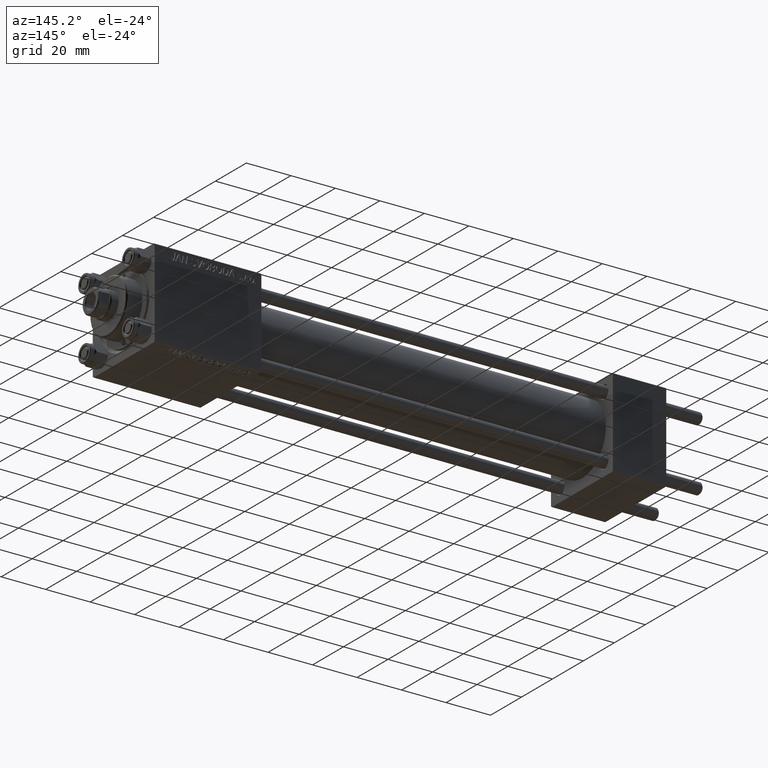
[diagram: clean part render]
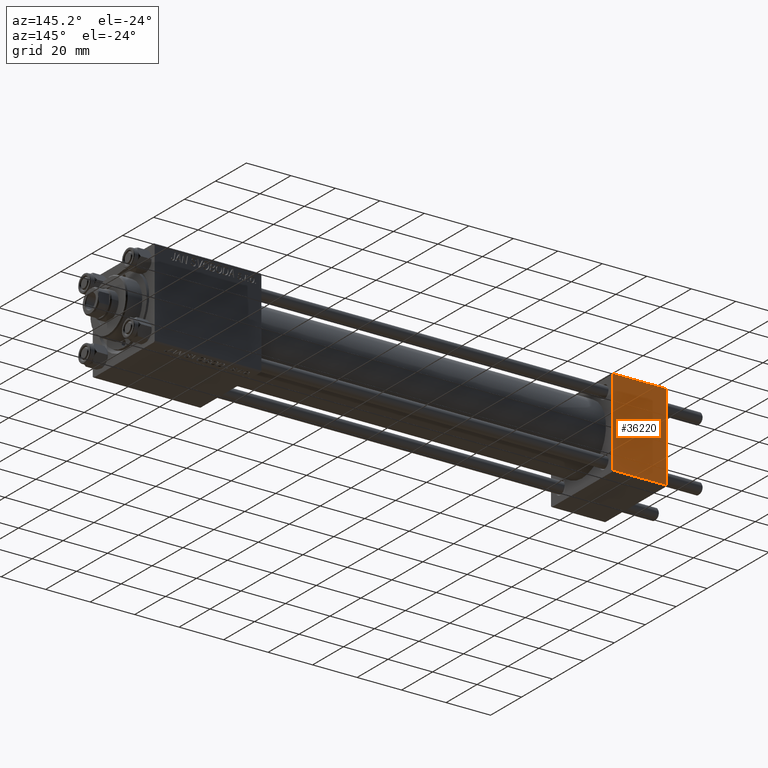
[diagram: same view with one face highlighted and labeled with its STEP entity id]
A machine part, auxiliary view. The second image highlights one B-rep face of the part: STEP entity #36220.
In plain terms, the highlighted planar face has unit normal (0, 1, 0).
Its self-contained STEP definition (entity closure, byte-faithful):
#1849 = VERTEX_POINT ( 'NONE', #12197 ) ;
#1870 = CARTESIAN_POINT ( 'NONE',  ( 0.000000000000000000, 20.00000000000000000, -19.50000000000002132 ) ) ;
#3636 = LINE ( 'NONE', #26838, #38326 ) ;
#3725 = VERTEX_POINT ( 'NONE', #1870 ) ;
#4503 = LINE ( 'NONE', #46664, #32219 ) ;
#4869 = VECTOR ( 'NONE', #39411, 1000.000000000000000 ) ;
#6196 = LINE ( 'NONE', #29422, #15324 ) ;
#7413 = DIRECTION ( 'NONE',  ( 0.000000000000000000, 0.000000000000000000, -1.000000000000000000 ) ) ;
#12064 = DIRECTION ( 'NONE',  ( -1.000000000000000000, 0.000000000000000000, 0.000000000000000000 ) ) ;
#12197 = CARTESIAN_POINT ( 'NONE',  ( 0.000000000000000000, 20.00000000000000000, 19.49999999999999289 ) ) ;
#12305 = AXIS2_PLACEMENT_3D ( 'NONE', #25514, #21723, #45194 ) ;
#12596 = VERTEX_POINT ( 'NONE', #13426 ) ;
#13171 = VERTEX_POINT ( 'NONE', #44856 ) ;
#13409 = FACE_OUTER_BOUND ( 'NONE', #26236, .T. ) ;
#13426 = CARTESIAN_POINT ( 'NONE',  ( 24.00000000000000000, 20.00000000000000000, 19.49999999999999289 ) ) ;
#15324 = VECTOR ( 'NONE', #36504, 1000.000000000000000 ) ;
#20355 = EDGE_CURVE ( 'NONE', #12596, #13171, #3636, .T. ) ;
#21723 = DIRECTION ( 'NONE',  ( -0.000000000000000000, 1.000000000000000000, 0.000000000000000000 ) ) ;
#25514 = CARTESIAN_POINT ( 'NONE',  ( 24.00000000000000000, 20.00000000000000000, 20.00000000000000000 ) ) ;
#26236 = EDGE_LOOP ( 'NONE', ( #43578, #38053, #39353, #27605 ) ) ;
#26838 = CARTESIAN_POINT ( 'NONE',  ( 24.00000000000000000, 20.00000000000000000, 20.00000000000000000 ) ) ;
#27605 = ORIENTED_EDGE ( 'NONE', *, *, #49384, .T. ) ;
#29422 = CARTESIAN_POINT ( 'NONE',  ( 24.00000000000000000, 20.00000000000000000, 19.49999999999999289 ) ) ;
#32088 = LINE ( 'NONE', #47492, #4869 ) ;
#32219 = VECTOR ( 'NONE', #12064, 1000.000000000000000 ) ;
#33352 = PLANE ( 'NONE',  #12305 ) ;
#36220 = ADVANCED_FACE ( 'NONE', ( #13409 ), #33352, .T. ) ;
#36504 = DIRECTION ( 'NONE',  ( 1.000000000000000000, 0.000000000000000000, 0.000000000000000000 ) ) ;
#38053 = ORIENTED_EDGE ( 'NONE', *, *, #48083, .T. ) ;
#38326 = VECTOR ( 'NONE', #7413, 1000.000000000000000 ) ;
#39353 = ORIENTED_EDGE ( 'NONE', *, *, #45872, .F. ) ;
#39411 = DIRECTION ( 'NONE',  ( 0.000000000000000000, 0.000000000000000000, -1.000000000000000000 ) ) ;
#43578 = ORIENTED_EDGE ( 'NONE', *, *, #20355, .T. ) ;
#44856 = CARTESIAN_POINT ( 'NONE',  ( 24.00000000000000000, 20.00000000000000000, -19.50000000000002132 ) ) ;
#45194 = DIRECTION ( 'NONE',  ( 0.000000000000000000, -0.000000000000000000, 1.000000000000000000 ) ) ;
#45872 = EDGE_CURVE ( 'NONE', #1849, #3725, #32088, .T. ) ;
#46664 = CARTESIAN_POINT ( 'NONE',  ( 24.00000000000000000, 20.00000000000000000, -19.50000000000002132 ) ) ;
#47492 = CARTESIAN_POINT ( 'NONE',  ( 0.000000000000000000, 20.00000000000000000, 20.00000000000000000 ) ) ;
#48083 = EDGE_CURVE ( 'NONE', #13171, #3725, #4503, .T. ) ;
#49384 = EDGE_CURVE ( 'NONE', #1849, #12596, #6196, .T. ) ;